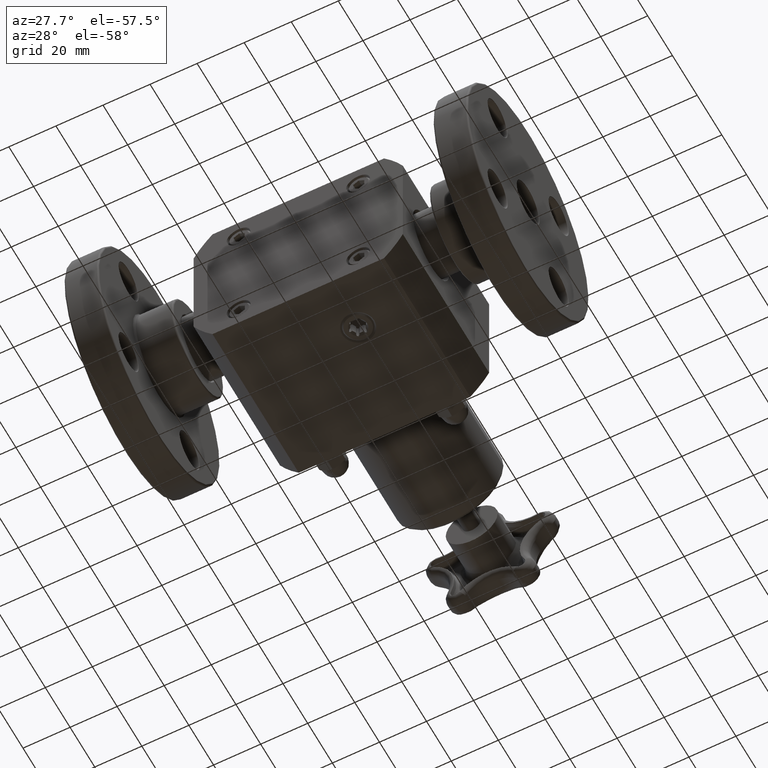
[diagram: clean part render]
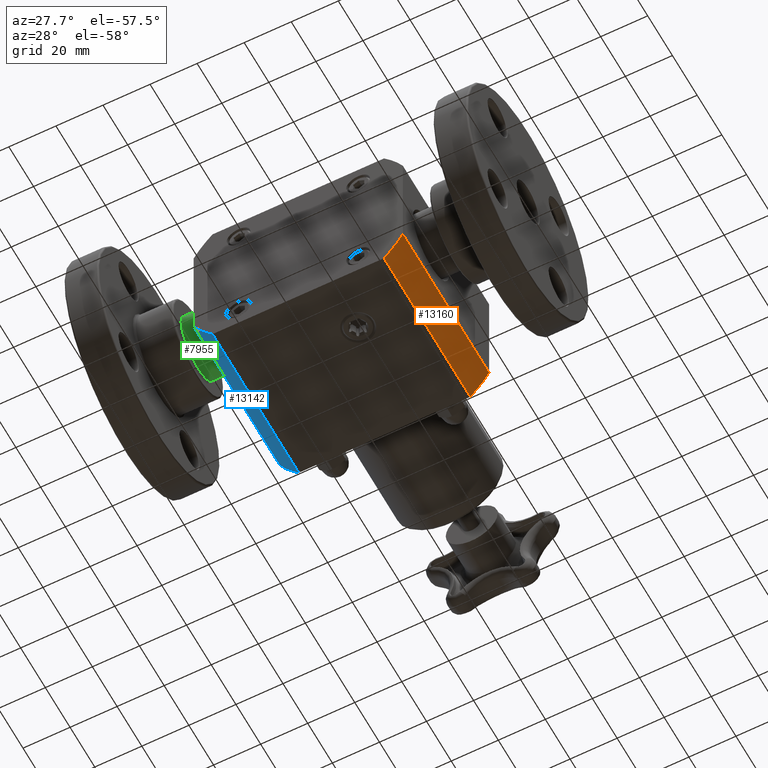
[diagram: same view with three faces highlighted in distinct colors, each labeled with its STEP entity id]
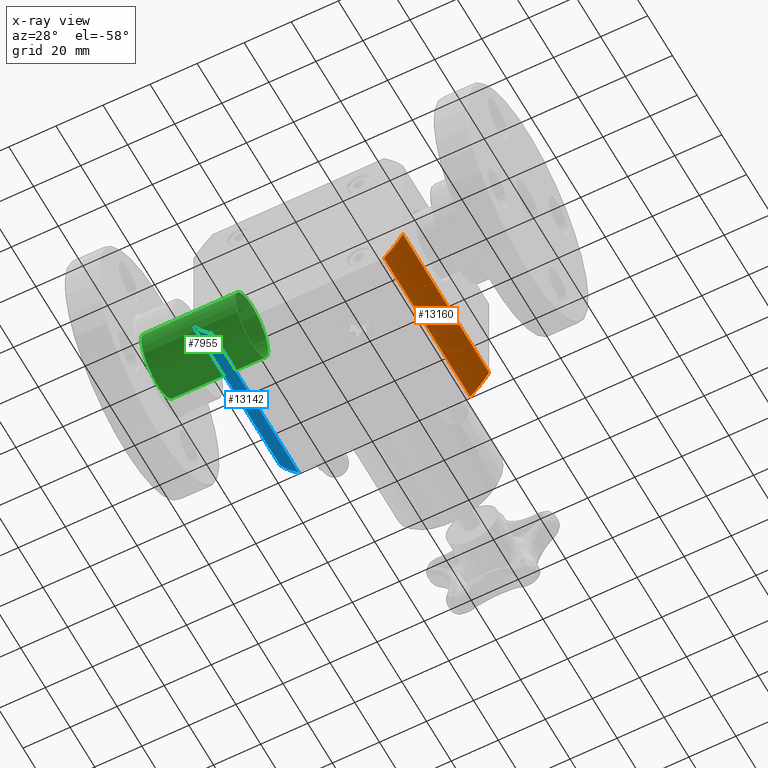
[diagram: x-ray of the same camera — body ghosted, the three highlighted faces saturated]
A machine part, auxiliary view with three faces highlighted in distinct colors.
The next image is the same camera in x-ray (body ghosted, the three faces saturated) — at least one of them is partly hidden behind the body in this view.
Their STEP definitions:

[orange] entity #13160 — the highlighted cylindrical surface (partial cylindrical patch) has radius 50.4825 mm, axis along (-0, 1, 0).
#12522=CARTESIAN_POINT('',(1.750000000000000,2.750000000000000,-0.942155109310564));
#12523=VERTEX_POINT('',#12522);
#12530=CARTESIAN_POINT('',(1.435106703349965,2.750000000000000,-1.375000000000000));
#12531=VERTEX_POINT('',#12530);
#12532=CARTESIAN_POINT('',(5.245148E-016,2.750000000000000,3.496765E-016));
#12533=DIRECTION('',(0.0,-1.0,0.0));
#12534=DIRECTION('',(1.0,0.0,0.0));
#12535=AXIS2_PLACEMENT_3D('',#12532,#12533,#12534);
#12536=CIRCLE('',#12535,1.987500000000001);
#12537=EDGE_CURVE('',#12531,#12523,#12536,.T.);
#12729=CARTESIAN_POINT('',(1.750000000000000,1.011657E-044,-0.942155109310564));
#12730=VERTEX_POINT('',#12729);
#12737=CARTESIAN_POINT('',(1.750000000000000,1.011657E-044,-0.942155109310564));
#12738=DIRECTION('',(0.0,1.0,0.0));
#12739=VECTOR('',#12738,2.750000000000000);
#12740=LINE('',#12737,#12739);
#12741=EDGE_CURVE('',#12730,#12523,#12740,.T.);
#12775=CARTESIAN_POINT('',(1.435106703349964,8.296202E-045,-1.375000000000000));
#12776=VERTEX_POINT('',#12775);
#12777=CARTESIAN_POINT('',(1.435106703349964,8.296202E-045,-1.375000000000000));
#12778=DIRECTION('',(0.0,1.0,0.0));
#12779=VECTOR('',#12778,2.750000000000000);
#12780=LINE('',#12777,#12779);
#12781=EDGE_CURVE('',#12776,#12531,#12780,.T.);
#13143=CARTESIAN_POINT('',(0.0,0.0,0.0));
#13144=DIRECTION('',(-5.780896E-045,1.0,0.0));
#13145=DIRECTION('',(-0.880503144654088,-5.090097E-045,0.474040306571353));
#13146=AXIS2_PLACEMENT_3D('',#13143,#13144,#13145);
#13147=CYLINDRICAL_SURFACE('',#13146,1.987500000000000);
#13148=ORIENTED_EDGE('',*,*,#12741,.F.);
#13149=CARTESIAN_POINT('',(0.0,0.0,0.0));
#13150=DIRECTION('',(4.481846E-045,-1.000000000000000,-2.412911E-045));
#13151=DIRECTION('',(-0.880503144654088,-5.090097E-045,0.474040306571353));
#13152=AXIS2_PLACEMENT_3D('',#13149,#13150,#13151);
#13153=CIRCLE('',#13152,1.987500000000000);
#13154=EDGE_CURVE('',#12776,#12730,#13153,.T.);
#13155=ORIENTED_EDGE('',*,*,#13154,.F.);
#13156=ORIENTED_EDGE('',*,*,#12781,.T.);
#13157=ORIENTED_EDGE('',*,*,#12537,.T.);
#13158=EDGE_LOOP('',(#13148,#13155,#13156,#13157));
#13159=FACE_OUTER_BOUND('',#13158,.T.);
#13160=ADVANCED_FACE('',(#13159),#13147,.T.);

[blue] entity #13142 — the highlighted cylindrical surface (partial cylindrical patch) has radius 50.4825 mm, axis along (-0, 1, 0).
#12488=CARTESIAN_POINT('',(-1.750000000000000,2.750000000000000,-0.942155109310564));
#12489=VERTEX_POINT('',#12488);
#12539=CARTESIAN_POINT('',(-1.435106703349963,2.750000000000000,-1.375000000000000));
#12540=VERTEX_POINT('',#12539);
#12547=CARTESIAN_POINT('',(5.245148E-016,2.750000000000000,3.496765E-016));
#12548=DIRECTION('',(0.0,-1.0,0.0));
#12549=DIRECTION('',(1.0,0.0,0.0));
#12550=AXIS2_PLACEMENT_3D('',#12547,#12548,#12549);
#12551=CIRCLE('',#12550,1.987500000000001);
#12552=EDGE_CURVE('',#12489,#12540,#12551,.T.);
#12783=CARTESIAN_POINT('',(-1.435106703349963,-8.296202E-045,-1.375000000000000));
#12784=VERTEX_POINT('',#12783);
#12791=CARTESIAN_POINT('',(-1.435106703349963,-8.296202E-045,-1.375000000000000));
#12792=DIRECTION('',(0.0,1.0,0.0));
#12793=VECTOR('',#12792,2.750000000000000);
#12794=LINE('',#12791,#12793);
#12795=EDGE_CURVE('',#12784,#12540,#12794,.T.);
#12849=CARTESIAN_POINT('',(-1.750000000000000,-1.011657E-044,-0.942155109310564));
#12850=VERTEX_POINT('',#12849);
#12851=CARTESIAN_POINT('',(-1.750000000000000,-1.011657E-044,-0.942155109310564));
#12852=DIRECTION('',(0.0,1.0,0.0));
#12853=VECTOR('',#12852,2.750000000000000);
#12854=LINE('',#12851,#12853);
#12855=EDGE_CURVE('',#12850,#12489,#12854,.T.);
#13125=CARTESIAN_POINT('',(0.0,0.0,0.0));
#13126=DIRECTION('',(-5.780896E-045,1.0,0.0));
#13127=DIRECTION('',(0.722066265836460,4.174190E-045,0.691823899371069));
#13128=AXIS2_PLACEMENT_3D('',#13125,#13126,#13127);
#13129=CYLINDRICAL_SURFACE('',#13128,1.987500000000000);
#13130=ORIENTED_EDGE('',*,*,#12795,.F.);
#13131=CARTESIAN_POINT('',(0.0,0.0,0.0));
#13132=DIRECTION('',(3.014042E-045,-1.0,2.887804E-045));
#13133=DIRECTION('',(0.722066265836460,4.174190E-045,0.691823899371069));
#13134=AXIS2_PLACEMENT_3D('',#13131,#13132,#13133);
#13135=CIRCLE('',#13134,1.987500000000000);
#13136=EDGE_CURVE('',#12850,#12784,#13135,.T.);
#13137=ORIENTED_EDGE('',*,*,#13136,.F.);
#13138=ORIENTED_EDGE('',*,*,#12855,.T.);
#13139=ORIENTED_EDGE('',*,*,#12552,.T.);
#13140=EDGE_LOOP('',(#13130,#13137,#13138,#13139));
#13141=FACE_OUTER_BOUND('',#13140,.T.);
#13142=ADVANCED_FACE('',(#13141),#13129,.T.);

[green] entity #7955 — the highlighted cylindrical surface (bore or boss wall) has radius 13.335 mm, axis along (1, -0, -0).
#7928=CARTESIAN_POINT('',(-2.176250000000005,0.900000000000001,-4.984751E-031));
#7929=DIRECTION('',(1.0,-1.400913E-015,-1.380507E-030));
#7930=DIRECTION('',(8.764611E-016,0.707106781186547,0.707106781186548));
#7931=AXIS2_PLACEMENT_3D('',#7928,#7929,#7930);
#7932=CYLINDRICAL_SURFACE('',#7931,0.525000000000000);
#7933=CARTESIAN_POINT('',(-2.825000000000014,0.528768939877065,-0.371231060122938));
#7934=VERTEX_POINT('',#7933);
#7935=CARTESIAN_POINT('',(-2.825000000000013,0.900000000000002,3.971286E-031));
#7936=DIRECTION('',(-1.000000000000000,6.197516E-016,6.197516E-016));
#7937=DIRECTION('',(8.764611E-016,0.707106781186547,0.707106781186548));
#7938=AXIS2_PLACEMENT_3D('',#7935,#7936,#7937);
#7939=CIRCLE('',#7938,0.525000000000000);
#7940=EDGE_CURVE('',#7934,#7934,#7939,.T.);
#7941=ORIENTED_EDGE('',*,*,#7940,.F.);
#7942=EDGE_LOOP('',(#7941));
#7943=FACE_OUTER_BOUND('',#7942,.T.);
#7944=CARTESIAN_POINT('',(-1.249999999999986,0.528768939877063,-0.371231060122938));
#7945=VERTEX_POINT('',#7944);
#7946=CARTESIAN_POINT('',(-1.249999999999986,0.900000000000000,-1.777169E-030));
#7947=DIRECTION('',(1.000000000000000,-6.197516E-016,-6.197516E-016));
#7948=DIRECTION('',(8.764611E-016,0.707106781186547,0.707106781186548));
#7949=AXIS2_PLACEMENT_3D('',#7946,#7947,#7948);
#7950=CIRCLE('',#7949,0.525000000000000);
#7951=EDGE_CURVE('',#7945,#7945,#7950,.T.);
#7952=ORIENTED_EDGE('',*,*,#7951,.F.);
#7953=EDGE_LOOP('',(#7952));
#7954=FACE_BOUND('',#7953,.T.);
#7955=ADVANCED_FACE('',(#7943,#7954),#7932,.T.);